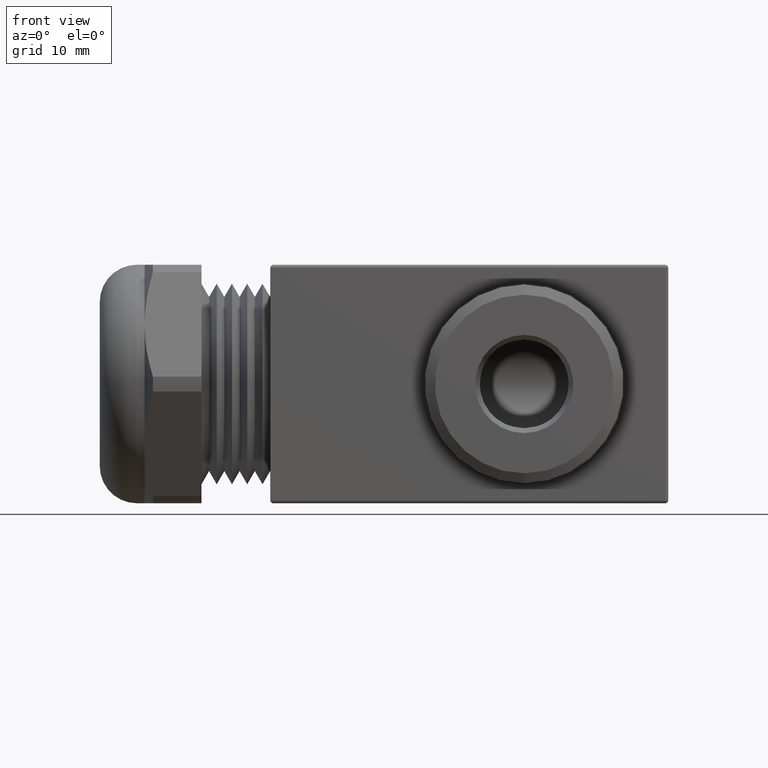
[diagram: clean part render]
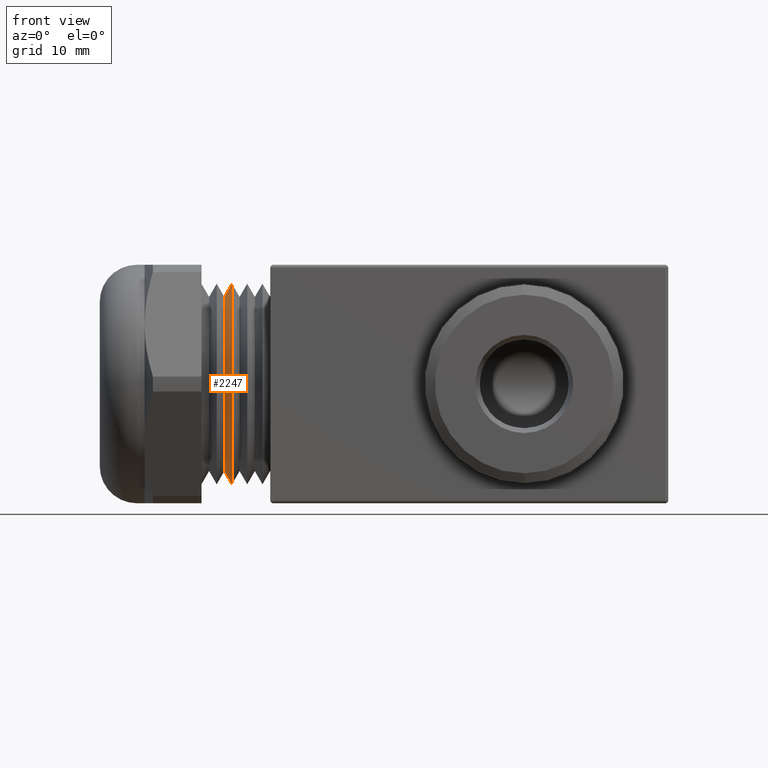
[diagram: same view with one face highlighted and labeled with its STEP entity id]
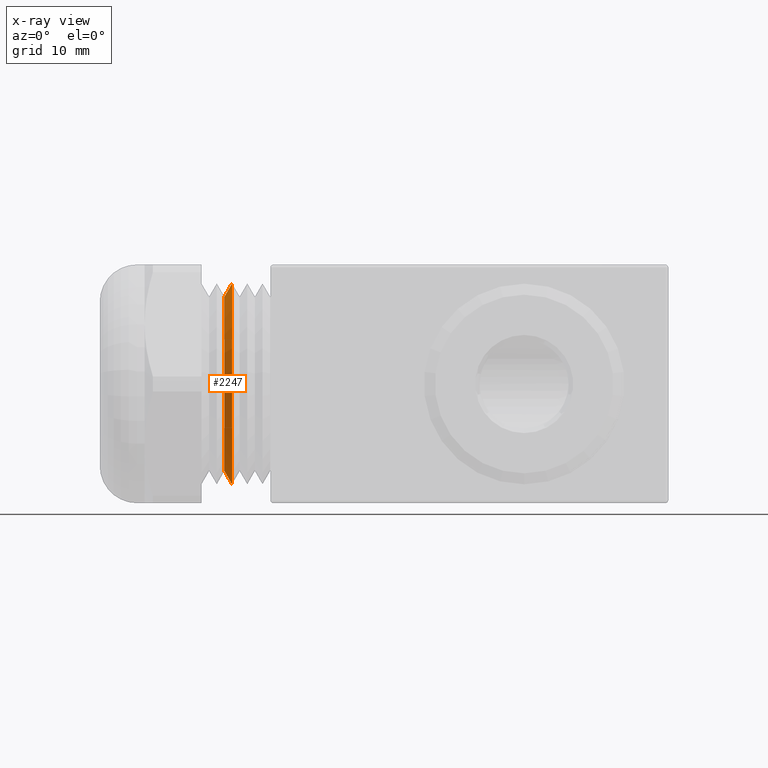
[diagram: x-ray of the same camera — body ghosted, the highlighted face saturated]
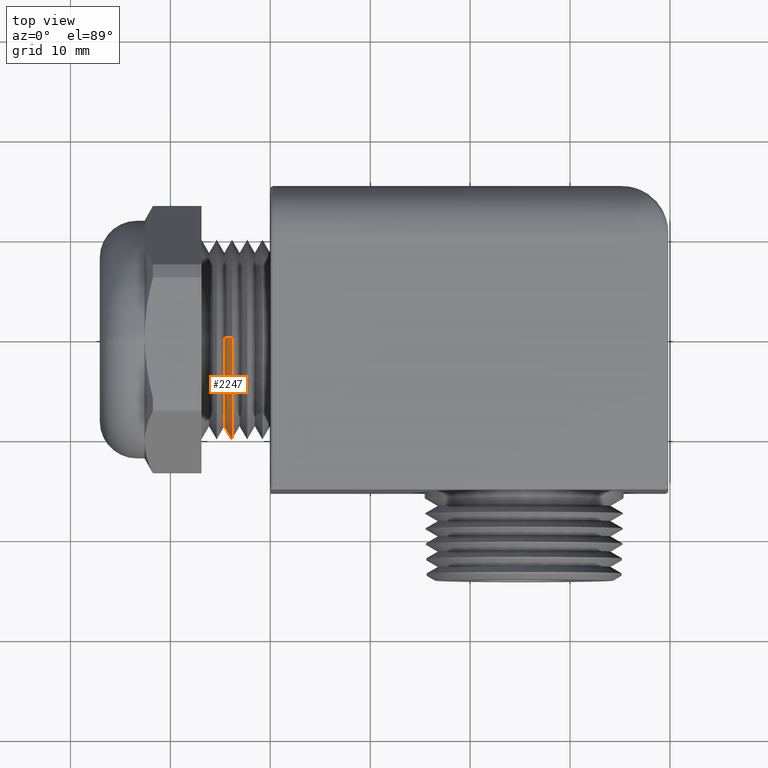
[diagram: same view with one face highlighted and labeled with its STEP entity id]
A machine part, front view. The second image highlights one B-rep face of the part: STEP entity #2247.
The next image is the same camera in x-ray: the body ghosted, the highlighted face saturated — about 0% of this face is hidden behind the body in this view.
A second angle (top view) of the same face is appended — the face is thin or edge-on in the first view.
In plain terms, the highlighted conical surface has half-angle 60 deg.
Its self-contained STEP definition (entity closure, byte-faithful):
#44 = FACE_OUTER_BOUND ( 'NONE', #2515, .T. ) ;
#45 = CONICAL_SURFACE ( 'NONE', #123, 0.3430385000000000200, 1.047197551196603200 ) ;
#46 = DIRECTION ( 'NONE',  ( 0.0000000000000000000, 0.0000000000000000000, 1.000000000000000000 ) ) ;
#47 = DIRECTION ( 'NONE',  ( -1.000000000000000000, 0.0000000000000000000, 0.0000000000000000000 ) ) ;
#48 = AXIS2_PLACEMENT_3D ( 'NONE', #74, #47, #46 ) ;
#74 = CARTESIAN_POINT ( 'NONE',  ( -0.1810579087243452400, 0.0000000000000000000, 0.0000000000000000000 ) ) ;
#75 = CIRCLE ( 'NONE', #48, 0.3430385000000000200 ) ;
#76 = DIRECTION ( 'NONE',  ( 0.0000000000000000000, 0.0000000000000000000, -1.000000000000000000 ) ) ;
#77 = DIRECTION ( 'NONE',  ( 1.000000000000000000, 0.0000000000000000000, 0.0000000000000000000 ) ) ;
#78 = CARTESIAN_POINT ( 'NONE',  ( -0.1810579087243452400, 0.0000000000000000000, 0.0000000000000000000 ) ) ;
#107 = DIRECTION ( 'NONE',  ( 0.4999999999999952800, 0.0000000000000000000, -0.8660254037844412600 ) ) ;
#108 = VECTOR ( 'NONE', #107, 39.37007874015748100 ) ;
#109 = CARTESIAN_POINT ( 'NONE',  ( -0.1810579087243452400, 0.0000000000000000000, -0.3430385000000000200 ) ) ;
#110 = LINE ( 'NONE', #109, #108 ) ;
#123 = AXIS2_PLACEMENT_3D ( 'NONE', #78, #77, #76 ) ;
#124 = CARTESIAN_POINT ( 'NONE',  ( -0.1510579227118488700, 4.837354856632045600E-017, -0.3950000000000000200 ) ) ;
#244 = DIRECTION ( 'NONE',  ( 0.4999999999999952800, 1.060575238724910200E-016, 0.8660254037844412600 ) ) ;
#245 = VECTOR ( 'NONE', #244, 39.37007874015748100 ) ;
#246 = CARTESIAN_POINT ( 'NONE',  ( -0.1810579087243452400, 4.201010010093093600E-017, 0.3430385000000000200 ) ) ;
#247 = LINE ( 'NONE', #246, #245 ) ;
#248 = CARTESIAN_POINT ( 'NONE',  ( -0.1510579227118488700, 0.0000000000000000000, 0.3950000000000000200 ) ) ;
#1526 = EDGE_CURVE ( 'NONE', #2273, #2322, #2966, .T. ) ;
#2024 = VERTEX_POINT ( 'NONE', #4034 ) ;
#2025 = VERTEX_POINT ( 'NONE', #4033 ) ;
#2247 = ADVANCED_FACE ( 'NONE', ( #44 ), #45, .T. ) ;
#2248 = EDGE_CURVE ( 'NONE', #2025, #2024, #75, .T. ) ;
#2250 = ORIENTED_EDGE ( 'NONE', *, *, #2248, .F. ) ;
#2273 = VERTEX_POINT ( 'NONE', #124 ) ;
#2277 = EDGE_CURVE ( 'NONE', #2025, #2273, #110, .T. ) ;
#2322 = VERTEX_POINT ( 'NONE', #248 ) ;
#2323 = EDGE_CURVE ( 'NONE', #2024, #2322, #247, .T. ) ;
#2506 = ORIENTED_EDGE ( 'NONE', *, *, #2323, .F. ) ;
#2507 = ORIENTED_EDGE ( 'NONE', *, *, #1526, .T. ) ;
#2515 = EDGE_LOOP ( 'NONE', ( #2506, #2250, #2516, #2507 ) ) ;
#2516 = ORIENTED_EDGE ( 'NONE', *, *, #2277, .T. ) ;
#2962 = DIRECTION ( 'NONE',  ( 0.0000000000000000000, 0.0000000000000000000, 1.000000000000000000 ) ) ;
#2963 = DIRECTION ( 'NONE',  ( -1.000000000000000000, 0.0000000000000000000, 0.0000000000000000000 ) ) ;
#2964 = CARTESIAN_POINT ( 'NONE',  ( -0.1510579227118488700, 0.0000000000000000000, 0.0000000000000000000 ) ) ;
#2965 = AXIS2_PLACEMENT_3D ( 'NONE', #2964, #2963, #2962 ) ;
#2966 = CIRCLE ( 'NONE', #2965, 0.3950000000000000200 ) ;
#4033 = CARTESIAN_POINT ( 'NONE',  ( -0.1810579087243452400, 4.519182433362568700E-017, -0.3430385000000000200 ) ) ;
#4034 = CARTESIAN_POINT ( 'NONE',  ( -0.1810579087243452400, 0.0000000000000000000, 0.3430385000000000200 ) ) ;